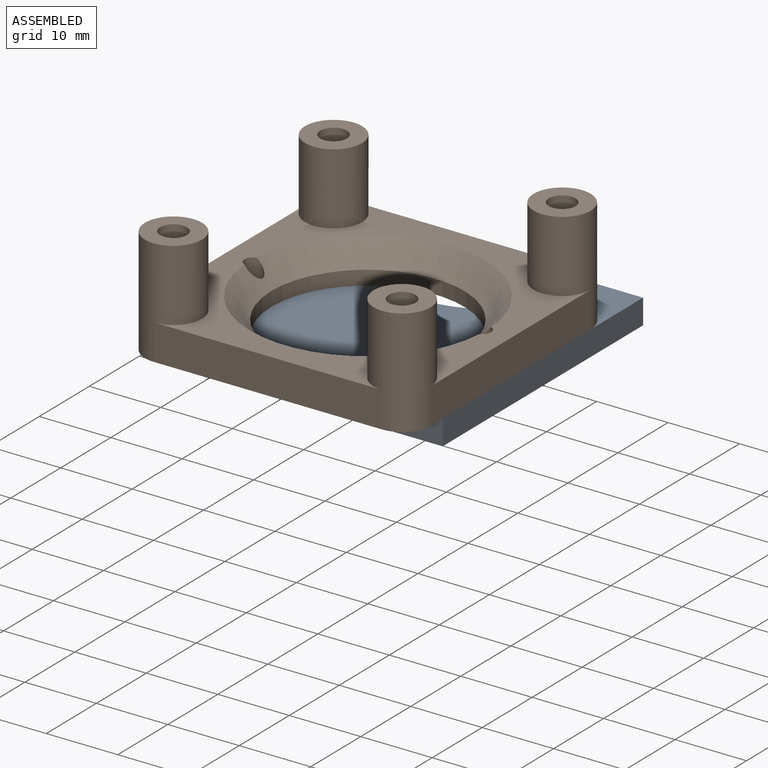
[diagram: assembled view]
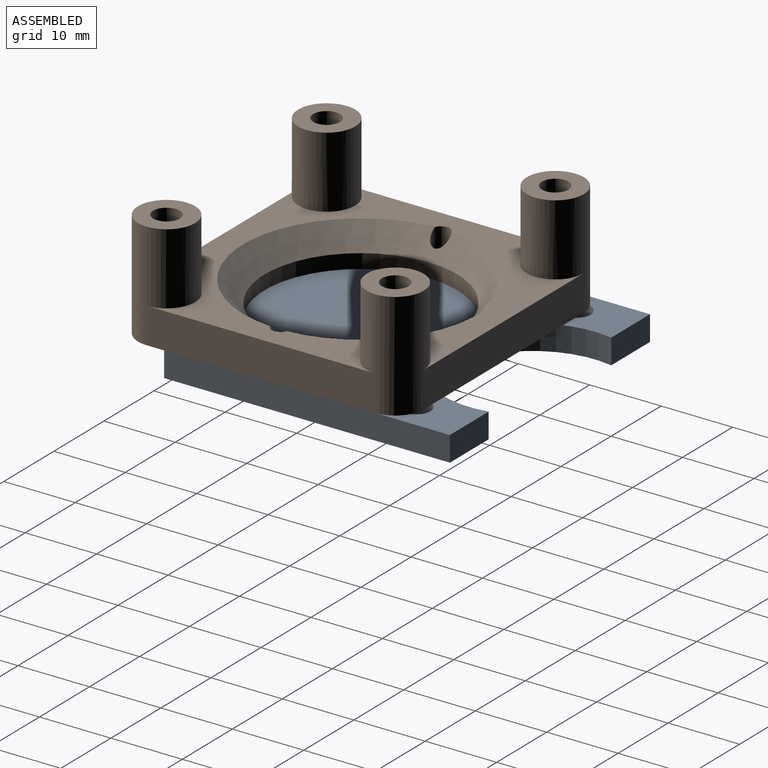
[diagram: assembled view, second angle]
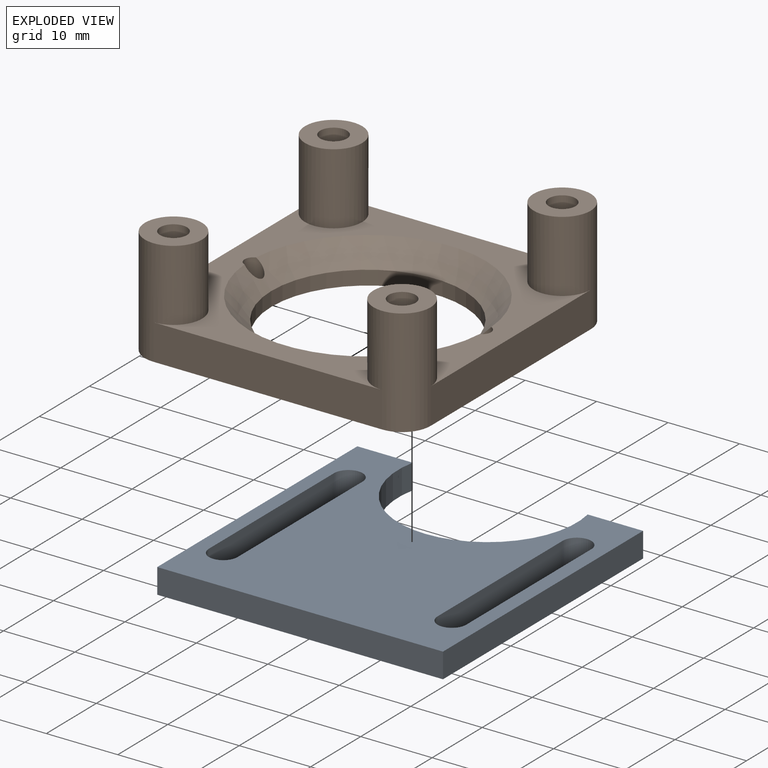
[diagram: exploded view]
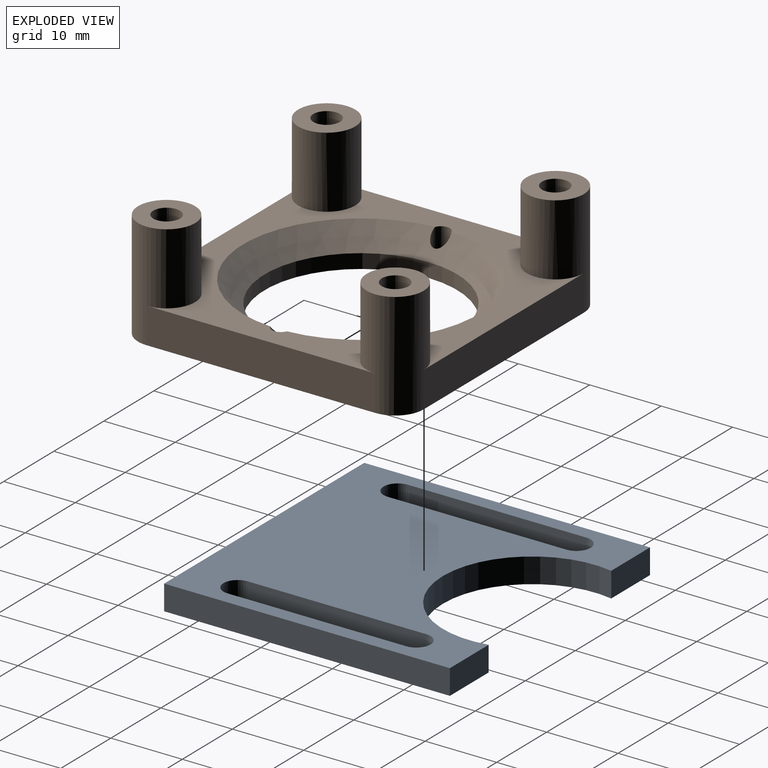
[diagram: exploded view, second angle]
ASSEMBLY  parts=2 mates=2
PART A: 16 faces, bbox 40x40x3.5 mm
  f0: plane 7.75x3.5mm, normal (0,1,0), area 27.1mm2, adj f7,f13,f14,f15
  f1: cylinder r=2mm len=4mm, axis (0,0,-1), area 22mm2, adj f2,f10,f13,f14
  f2: plane 25x3.5mm, normal (1,0,0), area 87.5mm2, adj f1,f3,f13,f14
  f3: cylinder r=2mm len=4mm, axis (0,0,-1), area 22mm2, adj f2,f10,f13,f14
  f4: cylinder r=2mm len=4mm, axis (0,0,-1), area 22mm2, adj f5,f11,f13,f14
  f5: plane 25x3.5mm, normal (-1,0,0), area 87.5mm2, adj f4,f6,f13,f14
  f6: cylinder r=2mm len=4mm, axis (0,0,-1), area 22mm2, adj f5,f11,f13,f14
  f7: plane 40x3.5mm, normal (1,0,0), area 140mm2, adj f0,f12,f13,f14
  f8: plane 7.75x3.5mm, normal (0,1,0), area 27.1mm2, adj f9,f13,f14,f15
  f9: plane 40x3.5mm, normal (-1,0,0), area 140mm2, adj f8,f12,f13,f14
  f10: plane 25x3.5mm, normal (-1,0,0), area 87.5mm2, adj f1,f3,f13,f14
  f11: plane 25x3.5mm, normal (1,0,0), area 87.5mm2, adj f4,f6,f13,f14
  f12: plane 40x3.5mm, normal (0,-1,0), area 140mm2, adj f7,f9,f13,f14
  f13: plane 40x40mm, normal (0,0,1), area 1067.3mm2, adj f0,f1,f2,f3,f4,f5,f6,f7
  f14: plane 40x40mm, normal (0,0,-1), area 1067.3mm2, adj f0,f1,f2,f3,f4,f5,f6,f7
  f15: cylinder r=12.5mm len=25mm, axis (0,0,1), area 155.1mm2, adj f0,f8,f13,f14
PART B: 30 faces, bbox 40x40x15 mm
  f0: cylinder r=1.88mm len=10.5mm, axis (0,0,1), area 123.7mm2, adj f14,f28
  f1: cylinder r=1.88mm len=10.5mm, axis (0,0,1), area 123.7mm2, adj f20,f26
  f2: cylinder r=1.88mm len=10.5mm, axis (0,0,1), area 123.7mm2, adj f18,f24
  f3: cylinder r=1.88mm len=10.5mm, axis (0,0,1), area 123.7mm2, adj f16,f22
  f4: plane 40x40mm, normal (0,0,1), area 527.4mm2, adj f5,f6,f7,f8,f10,f11,f13,f15
  f5: plane 32x5mm, normal (1,0,0), area 160mm2, adj f4,f9,f15,f17
  f6: plane 32x5mm, normal (0,1,0), area 160mm2, adj f4,f9,f13,f15
  f7: plane 32x5mm, normal (-1,0,0), area 160mm2, adj f4,f9,f13,f19
  f8: plane 32x5mm, normal (0,-1,0), area 160mm2, adj f4,f9,f17,f19
  f9: plane 40x40mm, normal (0,0,-1), area 871.2mm2, adj f5,f6,f7,f8,f10,f11,f12,f13
  f10: cylinder r=1.25mm len=5mm, axis (0,0,1), area 34.1mm2, adj f4,f9,f21
  f11: cylinder r=1.25mm len=5mm, axis (0,0,1), area 34.1mm2, adj f4,f9,f21
  f12: cylinder r=13.5mm len=27mm, axis (0,0,1), area 169.6mm2, adj f9,f21
  f13: cylinder r=4mm len=15mm, axis (0,0,-1), area 282.7mm2, adj f4,f6,f7,f9,f14
  f14: plane 8x8mm, normal (0,0,1), area 39.2mm2, adj f0,f13
  f15: cylinder r=4mm len=15mm, axis (0,0,-1), area 282.7mm2, adj f4,f5,f6,f9,f16
  f16: plane 8x8mm, normal (0,0,1), area 39.2mm2, adj f3,f15
  f17: cylinder r=4mm len=15mm, axis (0,0,-1), area 282.7mm2, adj f4,f5,f8,f9,f18
  f18: plane 8x8mm, normal (0,0,1), area 39.2mm2, adj f2,f17
  f19: cylinder r=4mm len=15mm, axis (0,0,-1), area 282.7mm2, adj f4,f7,f8,f9,f20
  f20: plane 8x8mm, normal (0,0,1), area 39.2mm2, adj f1,f19
  f21: cone r=13.5mm half-angle=45deg, axis (0,0,1), area 389.6mm2, adj f4,f10,f11,f12
  f22: plane 6.5x6.5mm, normal (0,0,-1), area 22.1mm2, adj f3,f23
  f23: cylinder r=3.25mm len=6.5mm, axis (0,0,-1), area 91.9mm2, adj f9,f22
  f24: plane 6.5x6.5mm, normal (0,0,-1), area 22.1mm2, adj f2,f25
  f25: cylinder r=3.25mm len=6.5mm, axis (0,0,-1), area 91.9mm2, adj f9,f24
  f26: plane 6.5x6.5mm, normal (0,0,-1), area 22.1mm2, adj f1,f27
  f27: cylinder r=3.25mm len=6.5mm, axis (0,0,-1), area 91.9mm2, adj f9,f26
  f28: plane 6.5x6.5mm, normal (0,0,-1), area 22.1mm2, adj f0,f29
  f29: cylinder r=3.25mm len=6.5mm, axis (0,0,-1), area 91.9mm2, adj f9,f28
PLACE A t=(0,6.45,-4.5)mm
PLACE B t=(0,0,-1)mm
MATE planar A.f13 <-> B.f12  axis (0,0,1) through (0,2.56,-1)mm
MATE planar A.f7 <-> B.f5  axis (1,0,0) through (20,6.45,-2.75)mm
